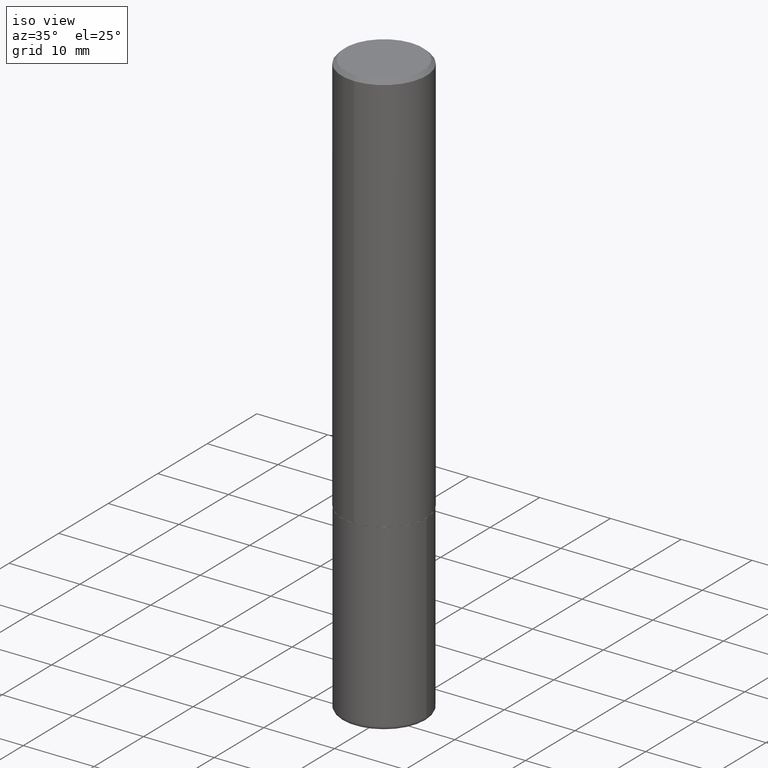
[diagram: clean part render]
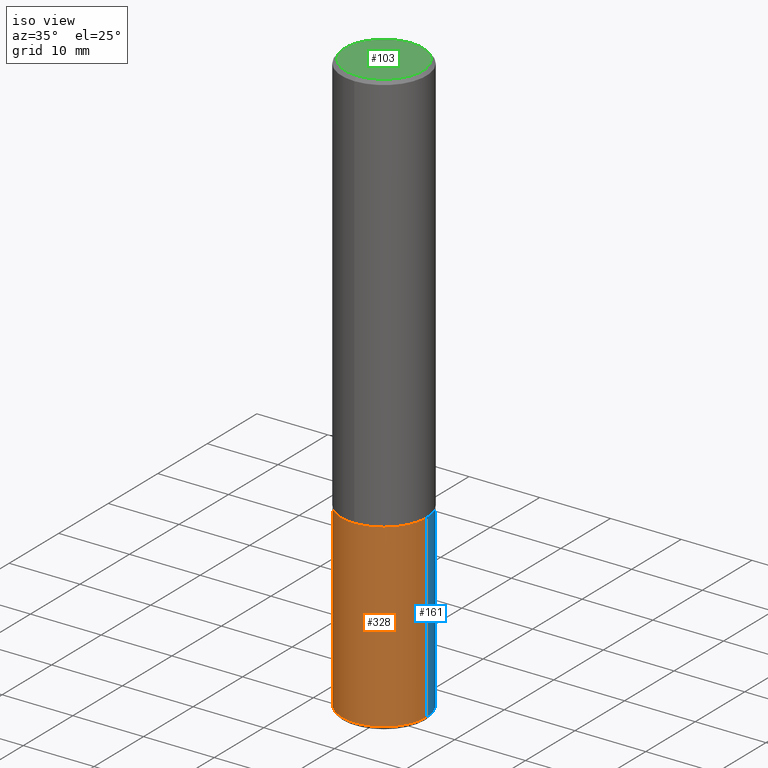
[diagram: same view with three faces highlighted in distinct colors, each labeled with its STEP entity id]
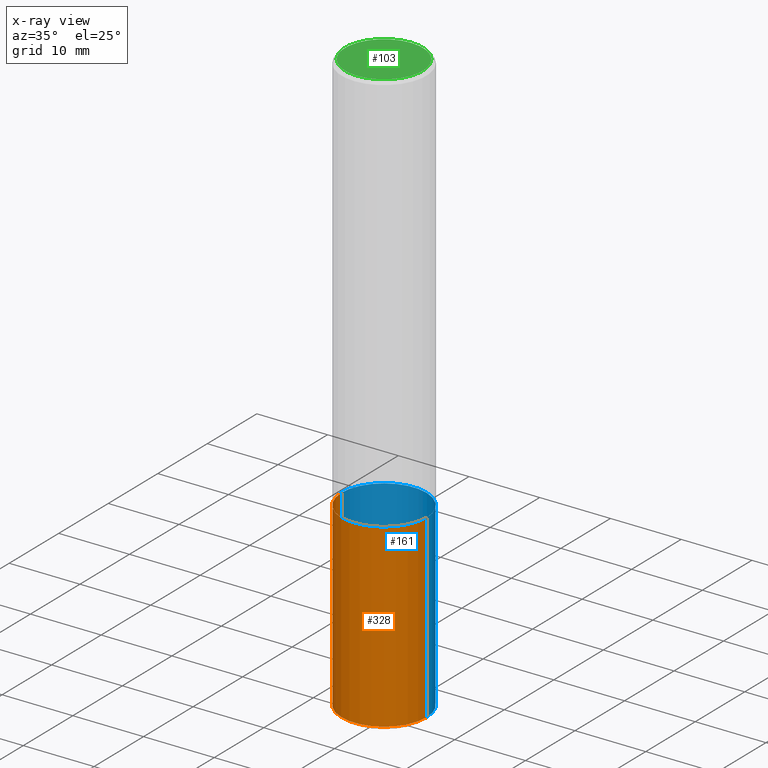
[diagram: x-ray of the same camera — body ghosted, the three highlighted faces saturated]
A machine part, iso view with three faces highlighted in distinct colors.
The next image is the same camera in x-ray (body ghosted, the three faces saturated) — at least one of them is partly hidden behind the body in this view.
Their STEP definitions:

[orange] entity #328 — the highlighted cylindrical surface (partial cylindrical patch) has radius 5.9995 mm, axis along (-0, 0, 1).
#26 = VECTOR ( 'NONE', #155, 39.37007874015748143 ) ;
#47 = ORIENTED_EDGE ( 'NONE', *, *, #402, .T. ) ;
#50 = DIRECTION ( 'NONE',  ( -2.445468806185136597E-29, 3.491481338843145583E-15, 1.000000000000000000 ) ) ;
#57 = CARTESIAN_POINT ( 'NONE',  ( -0.2361999999999999933, 1.678301941865356591E-15, -1.161852468318208757E-29 ) ) ;
#58 = DIRECTION ( 'NONE',  ( -2.445468806185136877E-29, 3.491481338843145188E-15, 1.000000000000000000 ) ) ;
#59 = CARTESIAN_POINT ( 'NONE',  ( 7.942882682489323855E-29, -1.134033138856253683E-14, -3.247999999999999776 ) ) ;
#72 = AXIS2_PLACEMENT_3D ( 'NONE', #59, #120, #86 ) ;
#86 = DIRECTION ( 'NONE',  ( 1.000000000000000000, -6.982962677686265133E-15, 0.000000000000000000 ) ) ;
#90 = EDGE_CURVE ( 'NONE', #147, #400, #226, .T. ) ;
#93 = VECTOR ( 'NONE', #58, 39.37007874015748143 ) ;
#105 = CIRCLE ( 'NONE', #214, 0.2361999999999999933 ) ;
#119 = DIRECTION ( 'NONE',  ( -2.445468806185136597E-29, 3.491481338843145583E-15, 1.000000000000000000 ) ) ;
#120 = DIRECTION ( 'NONE',  ( -2.445468806185136597E-29, 3.491481338843145583E-15, 1.000000000000000000 ) ) ;
#140 = CARTESIAN_POINT ( 'NONE',  ( -0.2361999999999999933, -7.909480388664863981E-15, -2.244100000000000428 ) ) ;
#147 = VERTEX_POINT ( 'NONE', #213 ) ;
#150 = CIRCLE ( 'NONE', #72, 0.2361999999999999933 ) ;
#155 = DIRECTION ( 'NONE',  ( -2.445468806185136877E-29, 3.491481338843145188E-15, 1.000000000000000000 ) ) ;
#168 = AXIS2_PLACEMENT_3D ( 'NONE', #408, #119, #192 ) ;
#192 = DIRECTION ( 'NONE',  ( 1.000000000000000000, -6.982962677686266711E-15, 4.876176775795936353E-29 ) ) ;
#204 = ORIENTED_EDGE ( 'NONE', *, *, #237, .F. ) ;
#212 = EDGE_LOOP ( 'NONE', ( #307, #47, #394, #204 ) ) ;
#213 = CARTESIAN_POINT ( 'NONE',  ( 0.2361999999999997990, -1.298970717303203178E-14, -3.247999999999999776 ) ) ;
#214 = AXIS2_PLACEMENT_3D ( 'NONE', #218, #50, #225 ) ;
#218 = CARTESIAN_POINT ( 'NONE',  ( 5.487876547960065873E-29, -7.835233272497903917E-15, -2.244100000000000428 ) ) ;
#225 = DIRECTION ( 'NONE',  ( 1.000000000000000000, -6.982962677686269077E-15, 0.000000000000000000 ) ) ;
#226 = LINE ( 'NONE', #352, #93 ) ;
#227 = VERTEX_POINT ( 'NONE', #140 ) ;
#237 = EDGE_CURVE ( 'NONE', #227, #400, #105, .T. ) ;
#257 = LINE ( 'NONE', #57, #26 ) ;
#288 = CYLINDRICAL_SURFACE ( 'NONE', #168, 0.2361999999999999933 ) ;
#299 = EDGE_CURVE ( 'NONE', #410, #227, #257, .T. ) ;
#307 = ORIENTED_EDGE ( 'NONE', *, *, #299, .F. ) ;
#316 = CARTESIAN_POINT ( 'NONE',  ( -0.2361999999999997990, -9.662029446697182017E-15, -3.247999999999999776 ) ) ;
#328 = ADVANCED_FACE ( 'NONE', ( #346 ), #288, .T. ) ;
#346 = FACE_OUTER_BOUND ( 'NONE', #212, .T. ) ;
#352 = CARTESIAN_POINT ( 'NONE',  ( 0.2361999999999999933, -1.649375784469496131E-15, 1.151752954443000088E-29 ) ) ;
#394 = ORIENTED_EDGE ( 'NONE', *, *, #90, .T. ) ;
#400 = VERTEX_POINT ( 'NONE', #409 ) ;
#402 = EDGE_CURVE ( 'NONE', #410, #147, #150, .T. ) ;
#408 = CARTESIAN_POINT ( 'NONE',  ( 0.000000000000000000, 0.000000000000000000, 0.000000000000000000 ) ) ;
#409 = CARTESIAN_POINT ( 'NONE',  ( 0.2361999999999999933, -9.484609056967400443E-15, -2.244100000000000428 ) ) ;
#410 = VERTEX_POINT ( 'NONE', #316 ) ;

[blue] entity #161 — the highlighted cylindrical surface (partial cylindrical patch) has radius 5.9995 mm, axis along (-0, 0, 1).
#26 = VECTOR ( 'NONE', #155, 39.37007874015748143 ) ;
#57 = CARTESIAN_POINT ( 'NONE',  ( -0.2361999999999999933, 1.678301941865356591E-15, -1.161852468318208757E-29 ) ) ;
#58 = DIRECTION ( 'NONE',  ( -2.445468806185136877E-29, 3.491481338843145188E-15, 1.000000000000000000 ) ) ;
#75 = EDGE_LOOP ( 'NONE', ( #180, #360, #236, #253 ) ) ;
#90 = EDGE_CURVE ( 'NONE', #147, #400, #226, .T. ) ;
#93 = VECTOR ( 'NONE', #58, 39.37007874015748143 ) ;
#99 = DIRECTION ( 'NONE',  ( 1.000000000000000000, -6.982962677686269077E-15, 0.000000000000000000 ) ) ;
#102 = CYLINDRICAL_SURFACE ( 'NONE', #399, 0.2361999999999999933 ) ;
#107 = DIRECTION ( 'NONE',  ( -2.445468806185136597E-29, 3.491481338843145583E-15, 1.000000000000000000 ) ) ;
#126 = CARTESIAN_POINT ( 'NONE',  ( 7.942882682489323855E-29, -1.134033138856253683E-14, -3.247999999999999776 ) ) ;
#140 = CARTESIAN_POINT ( 'NONE',  ( -0.2361999999999999933, -7.909480388664863981E-15, -2.244100000000000428 ) ) ;
#143 = CARTESIAN_POINT ( 'NONE',  ( 0.000000000000000000, 0.000000000000000000, 0.000000000000000000 ) ) ;
#147 = VERTEX_POINT ( 'NONE', #213 ) ;
#155 = DIRECTION ( 'NONE',  ( -2.445468806185136877E-29, 3.491481338843145188E-15, 1.000000000000000000 ) ) ;
#161 = ADVANCED_FACE ( 'NONE', ( #367 ), #102, .T. ) ;
#169 = AXIS2_PLACEMENT_3D ( 'NONE', #416, #417, #99 ) ;
#180 = ORIENTED_EDGE ( 'NONE', *, *, #260, .T. ) ;
#201 = AXIS2_PLACEMENT_3D ( 'NONE', #126, #376, #351 ) ;
#213 = CARTESIAN_POINT ( 'NONE',  ( 0.2361999999999997990, -1.298970717303203178E-14, -3.247999999999999776 ) ) ;
#226 = LINE ( 'NONE', #352, #93 ) ;
#227 = VERTEX_POINT ( 'NONE', #140 ) ;
#236 = ORIENTED_EDGE ( 'NONE', *, *, #415, .F. ) ;
#239 = DIRECTION ( 'NONE',  ( 1.000000000000000000, -6.982962677686266711E-15, 4.876176775795936353E-29 ) ) ;
#241 = CIRCLE ( 'NONE', #169, 0.2361999999999999933 ) ;
#253 = ORIENTED_EDGE ( 'NONE', *, *, #90, .F. ) ;
#257 = LINE ( 'NONE', #57, #26 ) ;
#260 = EDGE_CURVE ( 'NONE', #147, #410, #303, .T. ) ;
#299 = EDGE_CURVE ( 'NONE', #410, #227, #257, .T. ) ;
#303 = CIRCLE ( 'NONE', #201, 0.2361999999999999933 ) ;
#316 = CARTESIAN_POINT ( 'NONE',  ( -0.2361999999999997990, -9.662029446697182017E-15, -3.247999999999999776 ) ) ;
#351 = DIRECTION ( 'NONE',  ( 1.000000000000000000, -6.982962677686265133E-15, 0.000000000000000000 ) ) ;
#352 = CARTESIAN_POINT ( 'NONE',  ( 0.2361999999999999933, -1.649375784469496131E-15, 1.151752954443000088E-29 ) ) ;
#360 = ORIENTED_EDGE ( 'NONE', *, *, #299, .T. ) ;
#367 = FACE_OUTER_BOUND ( 'NONE', #75, .T. ) ;
#376 = DIRECTION ( 'NONE',  ( -2.445468806185136597E-29, 3.491481338843145583E-15, 1.000000000000000000 ) ) ;
#399 = AXIS2_PLACEMENT_3D ( 'NONE', #143, #107, #239 ) ;
#400 = VERTEX_POINT ( 'NONE', #409 ) ;
#409 = CARTESIAN_POINT ( 'NONE',  ( 0.2361999999999999933, -9.484609056967400443E-15, -2.244100000000000428 ) ) ;
#410 = VERTEX_POINT ( 'NONE', #316 ) ;
#415 = EDGE_CURVE ( 'NONE', #400, #227, #241, .T. ) ;
#416 = CARTESIAN_POINT ( 'NONE',  ( 5.487876547960065873E-29, -7.835233272497903917E-15, -2.244100000000000428 ) ) ;
#417 = DIRECTION ( 'NONE',  ( -2.445468806185136597E-29, 3.491481338843145583E-15, 1.000000000000000000 ) ) ;

[green] entity #103 — the highlighted planar face has unit normal (0, -0, -1).
#6 = VERTEX_POINT ( 'NONE', #217 ) ;
#7 = PLANE ( 'NONE',  #122 ) ;
#12 = ORIENTED_EDGE ( 'NONE', *, *, #270, .T. ) ;
#45 = DIRECTION ( 'NONE',  ( -2.446364679326609751E-29, 3.490198397514623595E-15, 1.000000000000000000 ) ) ;
#79 = CIRCLE ( 'NONE', #347, 0.2161999999999999755 ) ;
#80 = CARTESIAN_POINT ( 'NONE',  ( -1.559565199792445937E-45, 2.225012487767551474E-31, 6.375031543627968930E-17 ) ) ;
#85 = AXIS2_PLACEMENT_3D ( 'NONE', #80, #45, #216 ) ;
#91 = DIRECTION ( 'NONE',  ( -6.982962677686265922E-15, -1.000000000000000000, 3.490198397514623989E-15 ) ) ;
#103 = ADVANCED_FACE ( 'NONE', ( #238 ), #7, .F. ) ;
#112 = DIRECTION ( 'NONE',  ( 2.446364679326609191E-29, -3.490198397514623595E-15, -1.000000000000000000 ) ) ;
#122 = AXIS2_PLACEMENT_3D ( 'NONE', #403, #112, #248 ) ;
#166 = EDGE_CURVE ( 'NONE', #6, #203, #297, .T. ) ;
#167 = EDGE_LOOP ( 'NONE', ( #219, #12 ) ) ;
#203 = VERTEX_POINT ( 'NONE', #211 ) ;
#211 = CARTESIAN_POINT ( 'NONE',  ( -1.551844647095920339E-15, -0.2161999999999999755, 8.183312089789412461E-16 ) ) ;
#216 = DIRECTION ( 'NONE',  ( -6.982962677686265922E-15, -1.000000000000000000, 3.490198397514623989E-15 ) ) ;
#217 = CARTESIAN_POINT ( 'NONE',  ( 1.579546157692633819E-15, 0.2161999999999999755, -6.908305781063820154E-16 ) ) ;
#219 = ORIENTED_EDGE ( 'NONE', *, *, #166, .T. ) ;
#238 = FACE_OUTER_BOUND ( 'NONE', #167, .T. ) ;
#248 = DIRECTION ( 'NONE',  ( 6.982962677686265922E-15, 1.000000000000000000, -3.490198397514623595E-15 ) ) ;
#252 = CARTESIAN_POINT ( 'NONE',  ( -1.559565199792445937E-45, 2.225012487767551474E-31, 6.375031543627968930E-17 ) ) ;
#270 = EDGE_CURVE ( 'NONE', #203, #6, #79, .T. ) ;
#297 = CIRCLE ( 'NONE', #85, 0.2161999999999999755 ) ;
#347 = AXIS2_PLACEMENT_3D ( 'NONE', #252, #382, #91 ) ;
#382 = DIRECTION ( 'NONE',  ( -2.446364679326609751E-29, 3.490198397514623595E-15, 1.000000000000000000 ) ) ;
#403 = CARTESIAN_POINT ( 'NONE',  ( 1.509716530915770520E-15, 0.2161999999999999755, -7.227057358245215026E-16 ) ) ;